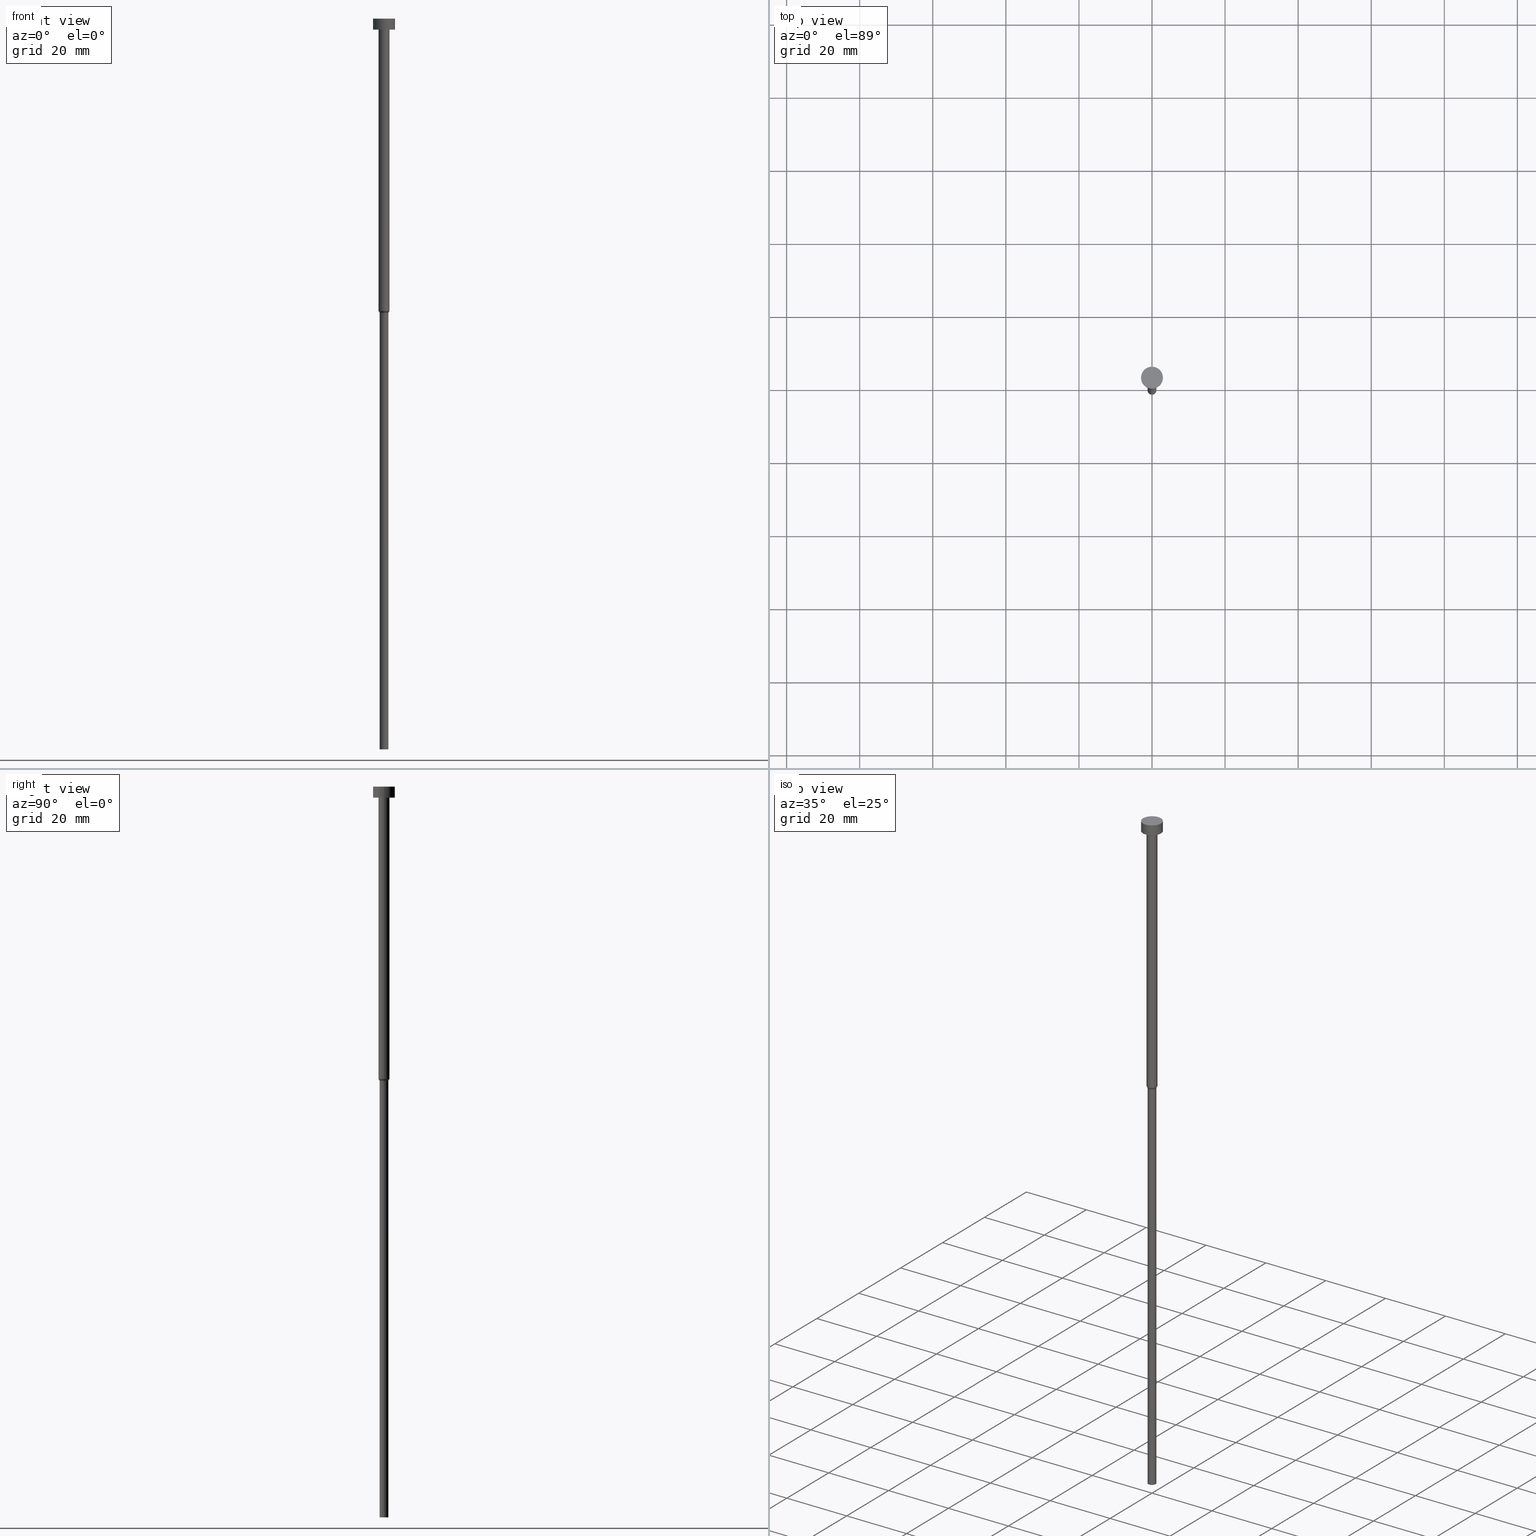
[diagram: canonical four-view strip — front | top / right | iso, engineering-drawing reading convention]
A machine part, canonical four-view strip (front | top / right | iso — engineering-drawing reading convention). The complete STEP part file that produces these views, byte-faithful:
ISO-10303-21;
HEADER;
FILE_DESCRIPTION (( 'STEP AP203' ),
    '1' );
FILE_NAME ('e795.STEP',
    '2023-02-13T09:02:41',
    ( '' ),
    ( '' ),
    'SwSTEP 2.0',
    'SolidWorks 2019',
    '' );
FILE_SCHEMA (( 'CONFIG_CONTROL_DESIGN' ));
ENDSEC;

DATA;
#1 = PERSON_AND_ORGANIZATION ( #167, #146 ) ;
#2 = CC_DESIGN_APPROVAL ( #73, ( #165 ) ) ;
#3 = ORIENTED_EDGE ( 'NONE', *, *, #306, .T. ) ;
#4 = DIRECTION ( 'NONE',  ( -0.000000000000000000, -0.000000000000000000, 1.000000000000000000 ) ) ;
#5 = DIRECTION ( 'NONE',  ( -0.000000000000000000, -0.000000000000000000, 1.000000000000000000 ) ) ;
#6 = FACE_OUTER_BOUND ( 'NONE', #250, .T. ) ;
#7 = EDGE_CURVE ( 'NONE', #352, #171, #114, .T. ) ;
#8 = CARTESIAN_POINT ( 'NONE',  ( -3.000000000000000000, 3.673940397442059868E-16, -3.673940397442059868E-16 ) ) ;
#9 = DIRECTION ( 'NONE',  ( 1.000000000000000000, 0.000000000000000000, 0.000000000000000000 ) ) ;
#10 = EDGE_CURVE ( 'NONE', #62, #171, #228, .T. ) ;
#11 = PERSON_AND_ORGANIZATION_ROLE ( 'creator' ) ;
#12 = EDGE_CURVE ( 'NONE', #352, #289, #100, .T. ) ;
#13 = ORIENTED_EDGE ( 'NONE', *, *, #22, .F. ) ;
#14 = DIRECTION ( 'NONE',  ( 1.000000000000000000, 0.000000000000000000, 0.000000000000000000 ) ) ;
#15 = EDGE_LOOP ( 'NONE', ( #329, #120 ) ) ;
#16 = DIRECTION ( 'NONE',  ( -0.000000000000000000, -0.000000000000000000, 1.000000000000000000 ) ) ;
#17 = AXIS2_PLACEMENT_3D ( 'NONE', #308, #177, #76 ) ;
#18 = DESIGN_CONTEXT ( 'detailed design', #105, 'design' ) ;
#19 = CARTESIAN_POINT ( 'NONE',  ( 0.000000000000000000, 0.000000000000000000, -200.0000000000000000 ) ) ;
#20 = MANIFOLD_SOLID_BREP ( 'Rotovat1', #123 ) ;
#21 = CIRCLE ( 'NONE', #26, 3.000000000000000000 ) ;
#22 = EDGE_CURVE ( 'NONE', #39, #60, #314, .T. ) ;
#23 = CARTESIAN_POINT ( 'NONE',  ( 0.000000000000000000, 0.000000000000000000, -1.836970198721029934E-16 ) ) ;
#24 = DIRECTION ( 'NONE',  ( 1.000000000000000000, 0.000000000000000000, 0.000000000000000000 ) ) ;
#25 = DIRECTION ( 'NONE',  ( 1.000000000000000000, 0.000000000000000000, 0.000000000000000000 ) ) ;
#26 = AXIS2_PLACEMENT_3D ( 'NONE', #183, #42, #307 ) ;
#27 = CARTESIAN_POINT ( 'NONE',  ( 0.000000000000000000, 0.000000000000000000, 0.000000000000000000 ) ) ;
#28 = ORIENTED_EDGE ( 'NONE', *, *, #271, .T. ) ;
#29 = EDGE_CURVE ( 'NONE', #265, #62, #202, .T. ) ;
#30 = AXIS2_PLACEMENT_3D ( 'NONE', #285, #121, #93 ) ;
#31 = EDGE_LOOP ( 'NONE', ( #305, #224, #249, #269 ) ) ;
#32 = PRODUCT_RELATED_PRODUCT_CATEGORY ( 'detail', '', ( #84 ) ) ;
#33 = VERTEX_POINT ( 'NONE', #8 ) ;
#34 = CIRCLE ( 'NONE', #88, 1.500000000000000000 ) ;
#35 = ADVANCED_FACE ( 'NONE', ( #127 ), #144, .T. ) ;
#36 = ORIENTED_EDGE ( 'NONE', *, *, #241, .F. ) ;
#37 = DIRECTION ( 'NONE',  ( 1.000000000000000000, 0.000000000000000000, 0.000000000000000000 ) ) ;
#38 = ORIENTED_EDGE ( 'NONE', *, *, #258, .F. ) ;
#39 = VERTEX_POINT ( 'NONE', #156 ) ;
#40 = CYLINDRICAL_SURFACE ( 'NONE', #108, 1.199999999999999956 ) ;
#41 = CARTESIAN_POINT ( 'NONE',  ( -1.500000000000000000, 1.836970198721029934E-16, 0.000000000000000000 ) ) ;
#42 = DIRECTION ( 'NONE',  ( -0.000000000000000000, -0.000000000000000000, 1.000000000000000000 ) ) ;
#43 = APPROVAL ( #166, 'NEUR�EN�' ) ;
#44 = CALENDAR_DATE ( 2023, 13, 2 ) ;
#45 = DIRECTION ( 'NONE',  ( 1.000000000000000000, 0.000000000000000000, 0.000000000000000000 ) ) ;
#46 = AXIS2_PLACEMENT_3D ( 'NONE', #209, #16, #162 ) ;
#47 = APPROVAL_ROLE ( '' ) ;
#48 = CARTESIAN_POINT ( 'NONE',  ( 0.000000000000000000, 0.000000000000000000, -3.000000000000000888 ) ) ;
#49 = CC_DESIGN_PERSON_AND_ORGANIZATION_ASSIGNMENT ( #1, #327, ( #316 ) ) ;
#50 = ORIENTED_EDGE ( 'NONE', *, *, #271, .F. ) ;
#51 = DIRECTION ( 'NONE',  ( 1.000000000000000000, 0.000000000000000000, 0.000000000000000000 ) ) ;
#52 = FACE_OUTER_BOUND ( 'NONE', #168, .T. ) ;
#53 = DIRECTION ( 'NONE',  ( 1.000000000000000000, 0.000000000000000000, 0.000000000000000000 ) ) ;
#54 = FACE_OUTER_BOUND ( 'NONE', #15, .T. ) ;
#55 = DATE_AND_TIME ( #216, #227 ) ;
#56 = PERSON_AND_ORGANIZATION ( #167, #146 ) ;
#57 = CARTESIAN_POINT ( 'NONE',  ( 3.000000000000000000, 0.000000000000000000, -3.673940397442059868E-16 ) ) ;
#58 = AXIS2_PLACEMENT_3D ( 'NONE', #27, #318, #51 ) ;
#59 = CC_DESIGN_PERSON_AND_ORGANIZATION_ASSIGNMENT ( #343, #11, ( #316 ) ) ;
#60 = VERTEX_POINT ( 'NONE', #246 ) ;
#61 = EDGE_LOOP ( 'NONE', ( #199, #301 ) ) ;
#62 = VERTEX_POINT ( 'NONE', #188 ) ;
#63 = VECTOR ( 'NONE', #294, 1000.000000000000114 ) ;
#64 = ADVANCED_FACE ( 'NONE', ( #52 ), #248, .T. ) ;
#65 = ADVANCED_FACE ( 'NONE', ( #298 ), #275, .T. ) ;
#66 = AXIS2_PLACEMENT_3D ( 'NONE', #333, #130, #77 ) ;
#67 = LOCAL_TIME ( 10, 2, 41.00000000000000000, #303 ) ;
#68 = EDGE_LOOP ( 'NONE', ( #38, #94, #151, #147 ) ) ;
#69 = DIRECTION ( 'NONE',  ( -0.000000000000000000, -0.000000000000000000, 1.000000000000000000 ) ) ;
#70 = EDGE_CURVE ( 'NONE', #119, #289, #34, .T. ) ;
#71 = DIRECTION ( 'NONE',  ( -0.000000000000000000, -0.000000000000000000, 1.000000000000000000 ) ) ;
#72 = ORIENTED_EDGE ( 'NONE', *, *, #7, .F. ) ;
#73 = APPROVAL ( #132, 'NEUR�EN�' ) ;
#74 = CARTESIAN_POINT ( 'NONE',  ( 0.000000000000000000, 0.000000000000000000, -3.673940397442059868E-16 ) ) ;
#75 = ADVANCED_BREP_SHAPE_REPRESENTATION ( 'e795', ( #20, #267 ), #135 ) ;
#76 = DIRECTION ( 'NONE',  ( -1.000000000000000000, 0.000000000000000000, -0.000000000000000000 ) ) ;
#77 = DIRECTION ( 'NONE',  ( -1.000000000000000000, 0.000000000000000000, -0.000000000000000000 ) ) ;
#78 = COORDINATED_UNIVERSAL_TIME_OFFSET ( 1, 0, .AHEAD. ) ;
#79 = ADVANCED_FACE ( 'NONE', ( #192 ), #184, .T. ) ;
#80 = ORIENTED_EDGE ( 'NONE', *, *, #297, .T. ) ;
#81 = CYLINDRICAL_SURFACE ( 'NONE', #347, 1.500000000000000000 ) ;
#82 = DIRECTION ( 'NONE',  ( 1.000000000000000000, 0.000000000000000000, 0.000000000000000000 ) ) ;
#83 = VECTOR ( 'NONE', #5, 1000.000000000000000 ) ;
#84 = PRODUCT ( 'e795', 'e795', '', ( #299 ) ) ;
#85 = LOCAL_TIME ( 10, 2, 41.00000000000000000, #87 ) ;
#86 = CARTESIAN_POINT ( 'NONE',  ( 0.000000000000000000, 0.000000000000000000, 0.000000000000000000 ) ) ;
#87 = COORDINATED_UNIVERSAL_TIME_OFFSET ( 1, 0, .AHEAD. ) ;
#88 = AXIS2_PLACEMENT_3D ( 'NONE', #48, #320, #82 ) ;
#89 = DIRECTION ( 'NONE',  ( 1.000000000000000000, 0.000000000000000000, 0.000000000000000000 ) ) ;
#90 = SHAPE_DEFINITION_REPRESENTATION ( #196, #75 ) ;
#91 = VECTOR ( 'NONE', #152, 1000.000000000000114 ) ;
#92 = ADVANCED_FACE ( 'NONE', ( #234 ), #331, .T. ) ;
#93 = DIRECTION ( 'NONE',  ( 1.000000000000000000, 0.000000000000000000, 0.000000000000000000 ) ) ;
#94 = ORIENTED_EDGE ( 'NONE', *, *, #319, .T. ) ;
#95 = DIRECTION ( 'NONE',  ( -0.000000000000000000, -0.000000000000000000, 1.000000000000000000 ) ) ;
#96 = CC_DESIGN_PERSON_AND_ORGANIZATION_ASSIGNMENT ( #139, #220, ( #84 ) ) ;
#97 = CARTESIAN_POINT ( 'NONE',  ( 0.000000000000000000, 0.000000000000000000, -80.00000000000000000 ) ) ;
#98 = FACE_BOUND ( 'NONE', #61, .T. ) ;
#99 = AXIS2_PLACEMENT_3D ( 'NONE', #244, #213, #24 ) ;
#100 = LINE ( 'NONE', #41, #133 ) ;
#101 = LINE ( 'NONE', #263, #300 ) ;
#102 = EDGE_LOOP ( 'NONE', ( #201, #176 ) ) ;
#103 = UNCERTAINTY_MEASURE_WITH_UNIT (LENGTH_MEASURE( 1.000000000000000082E-05 ), #342, 'distance_accuracy_value', 'NONE');
#104 = APPROVAL_DATE_TIME ( #253, #112 ) ;
#105 = APPLICATION_CONTEXT ( 'configuration controlled 3d designs of mechanical parts and assemblies' ) ;
#106 = DIRECTION ( 'NONE',  ( 1.000000000000000000, 0.000000000000000000, 0.000000000000000000 ) ) ;
#107 = COORDINATED_UNIVERSAL_TIME_OFFSET ( 1, 0, .AHEAD. ) ;
#108 = AXIS2_PLACEMENT_3D ( 'NONE', #340, #134, #232 ) ;
#109 = PERSON_AND_ORGANIZATION_ROLE ( 'creator' ) ;
#110 = FACE_OUTER_BOUND ( 'NONE', #326, .T. ) ;
#111 = CALENDAR_DATE ( 2023, 13, 2 ) ;
#112 = APPROVAL ( #221, 'NEUR�EN�' ) ;
#113 = FACE_OUTER_BOUND ( 'NONE', #302, .T. ) ;
#114 = CIRCLE ( 'NONE', #226, 1.500000000000000000 ) ;
#115 = AXIS2_PLACEMENT_3D ( 'NONE', #74, #69, #317 ) ;
#116 = VERTEX_POINT ( 'NONE', #57 ) ;
#117 = VERTEX_POINT ( 'NONE', #254 ) ;
#118 = APPROVAL_PERSON_ORGANIZATION ( #245, #112, #47 ) ;
#119 = VERTEX_POINT ( 'NONE', #215 ) ;
#120 = ORIENTED_EDGE ( 'NONE', *, *, #235, .T. ) ;
#121 = DIRECTION ( 'NONE',  ( -0.000000000000000000, -0.000000000000000000, 1.000000000000000000 ) ) ;
#122 = ADVANCED_FACE ( 'NONE', ( #54 ), #350, .T. ) ;
#123 = CLOSED_SHELL ( 'NONE', ( #64, #335, #35, #310, #79, #161, #92, #129, #277, #65, #122 ) ) ;
#124 = DIRECTION ( 'NONE',  ( 1.000000000000000000, 0.000000000000000000, 0.000000000000000000 ) ) ;
#125 = PLANE ( 'NONE',  #66 ) ;
#126 = CC_DESIGN_PERSON_AND_ORGANIZATION_ASSIGNMENT ( #243, #155, ( #165 ) ) ;
#127 = FACE_OUTER_BOUND ( 'NONE', #257, .T. ) ;
#128 = ORIENTED_EDGE ( 'NONE', *, *, #282, .F. ) ;
#129 = ADVANCED_FACE ( 'NONE', ( #110 ), #218, .T. ) ;
#130 = DIRECTION ( 'NONE',  ( 0.000000000000000000, 0.000000000000000000, -1.000000000000000000 ) ) ;
#131 = ORIENTED_EDGE ( 'NONE', *, *, #355, .F. ) ;
#132 = APPROVAL_STATUS ( 'not_yet_approved' ) ;
#133 = VECTOR ( 'NONE', #4, 1000.000000000000000 ) ;
#134 = DIRECTION ( 'NONE',  ( -0.000000000000000000, -0.000000000000000000, 1.000000000000000000 ) ) ;
#135 =( GEOMETRIC_REPRESENTATION_CONTEXT ( 3 ) GLOBAL_UNCERTAINTY_ASSIGNED_CONTEXT ( ( #103 ) ) GLOBAL_UNIT_ASSIGNED_CONTEXT ( ( #342, #251, #323 ) ) REPRESENTATION_CONTEXT ( 'NONE', 'WORKASPACE' ) );
#136 = CARTESIAN_POINT ( 'NONE',  ( 0.000000000000000000, 0.000000000000000000, 0.000000000000000000 ) ) ;
#137 = APPLICATION_PROTOCOL_DEFINITION ( 'international standard', 'config_control_design', 1994, #105 ) ;
#138 = DIRECTION ( 'NONE',  ( 0.000000000000000000, -0.000000000000000000, 1.000000000000000000 ) ) ;
#139 = PERSON_AND_ORGANIZATION ( #167, #146 ) ;
#140 = DIRECTION ( 'NONE',  ( 1.000000000000000000, 0.000000000000000000, 0.000000000000000000 ) ) ;
#141 = EDGE_CURVE ( 'NONE', #265, #288, #200, .T. ) ;
#142 = DATE_AND_TIME ( #111, #67 ) ;
#143 = EDGE_LOOP ( 'NONE', ( #287, #334, #28, #262 ) ) ;
#144 = CONICAL_SURFACE ( 'NONE', #187, 1.500000000000000000, 0.5235987755982992597 ) ;
#145 = AXIS2_PLACEMENT_3D ( 'NONE', #19, #153, #9 ) ;
#146 = ORGANIZATION ( 'NEUR�EN�', 'NEUR�EN�', '' ) ;
#147 = ORIENTED_EDGE ( 'NONE', *, *, #264, .F. ) ;
#148 = DIRECTION ( 'NONE',  ( -0.000000000000000000, -0.000000000000000000, 1.000000000000000000 ) ) ;
#149 = EDGE_LOOP ( 'NONE', ( #131, #178, #354, #72 ) ) ;
#150 = CC_DESIGN_PERSON_AND_ORGANIZATION_ASSIGNMENT ( #56, #109, ( #225 ) ) ;
#151 = ORIENTED_EDGE ( 'NONE', *, *, #29, .T. ) ;
#152 = DIRECTION ( 'NONE',  ( 0.5000000000000003331, 0.000000000000000000, 0.8660254037844383745 ) ) ;
#153 = DIRECTION ( 'NONE',  ( -0.000000000000000000, -0.000000000000000000, 1.000000000000000000 ) ) ;
#154 = CARTESIAN_POINT ( 'NONE',  ( 0.000000000000000000, 0.000000000000000000, -80.51961524227066036 ) ) ;
#155 = PERSON_AND_ORGANIZATION_ROLE ( 'classification_officer' ) ;
#156 = CARTESIAN_POINT ( 'NONE',  ( 3.000000000000000000, 0.000000000000000000, -3.000000000000000888 ) ) ;
#157 = CARTESIAN_POINT ( 'NONE',  ( -3.000000000000000000, 3.673940397442059868E-16, 0.000000000000000000 ) ) ;
#158 = VECTOR ( 'NONE', #266, 1000.000000000000000 ) ;
#159 = COORDINATED_UNIVERSAL_TIME_OFFSET ( 1, 0, .AHEAD. ) ;
#160 = CC_DESIGN_SECURITY_CLASSIFICATION ( #165, ( #316 ) ) ;
#161 = ADVANCED_FACE ( 'NONE', ( #240 ), #40, .T. ) ;
#162 = DIRECTION ( 'NONE',  ( 1.000000000000000000, 0.000000000000000000, 0.000000000000000000 ) ) ;
#163 = AXIS2_PLACEMENT_3D ( 'NONE', #230, #332, #206 ) ;
#164 = DIRECTION ( 'NONE',  ( 0.000000000000000000, 0.000000000000000000, 1.000000000000000000 ) ) ;
#165 = SECURITY_CLASSIFICATION ( '', '', #345 ) ;
#166 = APPROVAL_STATUS ( 'not_yet_approved' ) ;
#167 = PERSON ( 'NEUR�EN�', 'NEUR�EN�', 'NEUR�EN�', ('NEUR�EN�'), ('NEUR�EN�'), ('NEUR�EN�') ) ;
#168 = EDGE_LOOP ( 'NONE', ( #338, #80, #256, #50 ) ) ;
#169 = ORIENTED_EDGE ( 'NONE', *, *, #268, .F. ) ;
#170 = AXIS2_PLACEMENT_3D ( 'NONE', #321, #247, #53 ) ;
#171 = VERTEX_POINT ( 'NONE', #207 ) ;
#172 = APPLICATION_CONTEXT ( 'configuration controlled 3d designs of mechanical parts and assemblies' ) ;
#173 = LINE ( 'NONE', #157, #83 ) ;
#174 = AXIS2_PLACEMENT_3D ( 'NONE', #86, #324, #89 ) ;
#175 = APPROVAL_PERSON_ORGANIZATION ( #195, #43, #349 ) ;
#176 = ORIENTED_EDGE ( 'NONE', *, *, #319, .F. ) ;
#177 = DIRECTION ( 'NONE',  ( 0.000000000000000000, 0.000000000000000000, -1.000000000000000000 ) ) ;
#178 = ORIENTED_EDGE ( 'NONE', *, *, #264, .T. ) ;
#179 = ORIENTED_EDGE ( 'NONE', *, *, #355, .T. ) ;
#180 = CARTESIAN_POINT ( 'NONE',  ( 3.000000000000000000, 0.000000000000000000, 0.000000000000000000 ) ) ;
#181 = CIRCLE ( 'NONE', #115, 3.000000000000000000 ) ;
#182 = DATE_TIME_ROLE ( 'classification_date' ) ;
#183 = CARTESIAN_POINT ( 'NONE',  ( 0.000000000000000000, 0.000000000000000000, -3.000000000000000888 ) ) ;
#184 = PLANE ( 'NONE',  #17 ) ;
#185 = DIRECTION ( 'NONE',  ( -0.000000000000000000, -0.000000000000000000, 1.000000000000000000 ) ) ;
#186 = ORIENTED_EDGE ( 'NONE', *, *, #12, .F. ) ;
#187 = AXIS2_PLACEMENT_3D ( 'NONE', #97, #204, #194 ) ;
#188 = CARTESIAN_POINT ( 'NONE',  ( 1.199999999999999956, 0.000000000000000000, -80.51961524227066036 ) ) ;
#189 = LINE ( 'NONE', #279, #63 ) ;
#190 = CARTESIAN_POINT ( 'NONE',  ( 0.000000000000000000, 0.000000000000000000, -80.00000000000000000 ) ) ;
#191 = AXIS2_PLACEMENT_3D ( 'NONE', #292, #315, #37 ) ;
#192 = FACE_OUTER_BOUND ( 'NONE', #102, .T. ) ;
#193 = DATE_AND_TIME ( #214, #296 ) ;
#194 = DIRECTION ( 'NONE',  ( 1.000000000000000000, 0.000000000000000000, 0.000000000000000000 ) ) ;
#195 = PERSON_AND_ORGANIZATION ( #167, #146 ) ;
#196 = PRODUCT_DEFINITION_SHAPE ( 'NONE', 'NONE',  #225 ) ;
#197 = AXIS2_PLACEMENT_3D ( 'NONE', #190, #252, #106 ) ;
#198 = APPROVAL_PERSON_ORGANIZATION ( #291, #73, #222 ) ;
#199 = ORIENTED_EDGE ( 'NONE', *, *, #70, .T. ) ;
#200 = CIRCLE ( 'NONE', #145, 1.199999999999999956 ) ;
#201 = ORIENTED_EDGE ( 'NONE', *, *, #141, .F. ) ;
#202 = LINE ( 'NONE', #311, #158 ) ;
#203 = CARTESIAN_POINT ( 'NONE',  ( -1.199999999999999956, 1.469576158976823553E-16, -200.0000000000000000 ) ) ;
#204 = DIRECTION ( 'NONE',  ( -0.000000000000000000, -0.000000000000000000, 1.000000000000000000 ) ) ;
#205 = DATE_AND_TIME ( #44, #278 ) ;
#206 = DIRECTION ( 'NONE',  ( 1.000000000000000000, 0.000000000000000000, 0.000000000000000000 ) ) ;
#207 = CARTESIAN_POINT ( 'NONE',  ( 1.500000000000000000, 0.000000000000000000, -80.00000000000000000 ) ) ;
#208 = VECTOR ( 'NONE', #71, 1000.000000000000000 ) ;
#209 = CARTESIAN_POINT ( 'NONE',  ( 0.000000000000000000, 0.000000000000000000, 0.000000000000000000 ) ) ;
#210 = DIRECTION ( 'NONE',  ( -0.000000000000000000, -0.000000000000000000, 1.000000000000000000 ) ) ;
#211 = CYLINDRICAL_SURFACE ( 'NONE', #58, 1.199999999999999956 ) ;
#212 = EDGE_CURVE ( 'NONE', #171, #119, #101, .T. ) ;
#213 = DIRECTION ( 'NONE',  ( -0.000000000000000000, -0.000000000000000000, 1.000000000000000000 ) ) ;
#214 = CALENDAR_DATE ( 2023, 13, 2 ) ;
#215 = CARTESIAN_POINT ( 'NONE',  ( 1.500000000000000000, 0.000000000000000000, -3.000000000000000888 ) ) ;
#216 = CALENDAR_DATE ( 2023, 13, 2 ) ;
#217 = FACE_OUTER_BOUND ( 'NONE', #31, .T. ) ;
#218 = CYLINDRICAL_SURFACE ( 'NONE', #174, 1.500000000000000000 ) ;
#219 = APPROVAL_DATE_TIME ( #142, #73 ) ;
#220 = PERSON_AND_ORGANIZATION_ROLE ( 'design_owner' ) ;
#221 = APPROVAL_STATUS ( 'not_yet_approved' ) ;
#222 = APPROVAL_ROLE ( '' ) ;
#223 = CIRCLE ( 'NONE', #170, 1.199999999999999956 ) ;
#224 = ORIENTED_EDGE ( 'NONE', *, *, #258, .T. ) ;
#225 = PRODUCT_DEFINITION ( 'NEZN�M�', '', #316, #18 ) ;
#226 = AXIS2_PLACEMENT_3D ( 'NONE', #238, #337, #124 ) ;
#227 = LOCAL_TIME ( 10, 2, 41.00000000000000000, #107 ) ;
#228 = LINE ( 'NONE', #260, #91 ) ;
#229 = CARTESIAN_POINT ( 'NONE',  ( 1.199999999999999956, 0.000000000000000000, -200.0000000000000000 ) ) ;
#230 = CARTESIAN_POINT ( 'NONE',  ( 0.000000000000000000, 0.000000000000000000, -3.000000000000000888 ) ) ;
#231 = VECTOR ( 'NONE', #148, 1000.000000000000000 ) ;
#232 = DIRECTION ( 'NONE',  ( 1.000000000000000000, 0.000000000000000000, 0.000000000000000000 ) ) ;
#233 = AXIS2_PLACEMENT_3D ( 'NONE', #154, #270, #330 ) ;
#234 = FACE_OUTER_BOUND ( 'NONE', #149, .T. ) ;
#235 = EDGE_CURVE ( 'NONE', #33, #116, #295, .T. ) ;
#236 = EDGE_CURVE ( 'NONE', #116, #33, #181, .T. ) ;
#237 = LINE ( 'NONE', #336, #208 ) ;
#238 = CARTESIAN_POINT ( 'NONE',  ( 0.000000000000000000, 0.000000000000000000, -80.00000000000000000 ) ) ;
#239 = ORIENTED_EDGE ( 'NONE', *, *, #212, .T. ) ;
#240 = FACE_OUTER_BOUND ( 'NONE', #68, .T. ) ;
#241 = EDGE_CURVE ( 'NONE', #60, #39, #21, .T. ) ;
#242 = CIRCLE ( 'NONE', #30, 1.500000000000000000 ) ;
#243 = PERSON_AND_ORGANIZATION ( #167, #146 ) ;
#244 = CARTESIAN_POINT ( 'NONE',  ( 0.000000000000000000, 0.000000000000000000, 0.000000000000000000 ) ) ;
#245 = PERSON_AND_ORGANIZATION ( #167, #146 ) ;
#246 = CARTESIAN_POINT ( 'NONE',  ( -3.000000000000000000, 3.673940397442059868E-16, -3.000000000000000888 ) ) ;
#247 = DIRECTION ( 'NONE',  ( -0.000000000000000000, -0.000000000000000000, 1.000000000000000000 ) ) ;
#248 = CYLINDRICAL_SURFACE ( 'NONE', #46, 3.000000000000000000 ) ;
#249 = ORIENTED_EDGE ( 'NONE', *, *, #306, .F. ) ;
#250 = EDGE_LOOP ( 'NONE', ( #13, #36 ) ) ;
#251 =( NAMED_UNIT ( * ) PLANE_ANGLE_UNIT ( ) SI_UNIT ( $, .RADIAN. ) );
#252 = DIRECTION ( 'NONE',  ( -0.000000000000000000, -0.000000000000000000, 1.000000000000000000 ) ) ;
#253 = DATE_AND_TIME ( #344, #85 ) ;
#254 = CARTESIAN_POINT ( 'NONE',  ( -1.199999999999999956, 1.469576158976823553E-16, -80.51961524227066036 ) ) ;
#255 = ORIENTED_EDGE ( 'NONE', *, *, #70, .F. ) ;
#256 = ORIENTED_EDGE ( 'NONE', *, *, #236, .F. ) ;
#257 = EDGE_LOOP ( 'NONE', ( #3, #179, #169, #309 ) ) ;
#258 = EDGE_CURVE ( 'NONE', #288, #117, #237, .T. ) ;
#259 = ORIENTED_EDGE ( 'NONE', *, *, #7, .T. ) ;
#260 = CARTESIAN_POINT ( 'NONE',  ( 1.500000000000000000, 0.000000000000000000, -80.00000000000000000 ) ) ;
#261 = CARTESIAN_POINT ( 'NONE',  ( 0.000000000000000000, 0.000000000000000000, -3.000000000000000888 ) ) ;
#262 = ORIENTED_EDGE ( 'NONE', *, *, #235, .F. ) ;
#263 = CARTESIAN_POINT ( 'NONE',  ( 1.500000000000000000, 0.000000000000000000, 0.000000000000000000 ) ) ;
#264 = EDGE_CURVE ( 'NONE', #117, #62, #339, .T. ) ;
#265 = VERTEX_POINT ( 'NONE', #229 ) ;
#266 = DIRECTION ( 'NONE',  ( -0.000000000000000000, -0.000000000000000000, 1.000000000000000000 ) ) ;
#267 = AXIS2_PLACEMENT_3D ( 'NONE', #136, #164, #140 ) ;
#268 = EDGE_CURVE ( 'NONE', #171, #352, #242, .T. ) ;
#269 = ORIENTED_EDGE ( 'NONE', *, *, #29, .F. ) ;
#270 = DIRECTION ( 'NONE',  ( -0.000000000000000000, -0.000000000000000000, 1.000000000000000000 ) ) ;
#271 = EDGE_CURVE ( 'NONE', #39, #116, #286, .T. ) ;
#272 = AXIS2_PLACEMENT_3D ( 'NONE', #261, #95, #45 ) ;
#273 = APPROVAL_DATE_TIME ( #205, #43 ) ;
#274 = CARTESIAN_POINT ( 'NONE',  ( -1.500000000000000000, 1.836970198721029934E-16, -80.00000000000000000 ) ) ;
#275 = CYLINDRICAL_SURFACE ( 'NONE', #99, 3.000000000000000000 ) ;
#276 = APPLICATION_PROTOCOL_DEFINITION ( 'international standard', 'config_control_design', 1994, #172 ) ;
#277 = ADVANCED_FACE ( 'NONE', ( #98, #6 ), #125, .T. ) ;
#278 = LOCAL_TIME ( 10, 2, 41.00000000000000000, #78 ) ;
#279 = CARTESIAN_POINT ( 'NONE',  ( -1.500000000000000000, 1.836970198721029934E-16, -80.00000000000000000 ) ) ;
#280 = CIRCLE ( 'NONE', #233, 1.199999999999999956 ) ;
#281 = CC_DESIGN_APPROVAL ( #112, ( #225 ) ) ;
#282 = EDGE_CURVE ( 'NONE', #289, #119, #284, .T. ) ;
#283 = ORIENTED_EDGE ( 'NONE', *, *, #12, .T. ) ;
#284 = CIRCLE ( 'NONE', #272, 1.500000000000000000 ) ;
#285 = CARTESIAN_POINT ( 'NONE',  ( 0.000000000000000000, 0.000000000000000000, -80.00000000000000000 ) ) ;
#286 = LINE ( 'NONE', #180, #231 ) ;
#287 = ORIENTED_EDGE ( 'NONE', *, *, #297, .F. ) ;
#288 = VERTEX_POINT ( 'NONE', #203 ) ;
#289 = VERTEX_POINT ( 'NONE', #313 ) ;
#290 = DIRECTION ( 'NONE',  ( -0.000000000000000000, -0.000000000000000000, 1.000000000000000000 ) ) ;
#291 = PERSON_AND_ORGANIZATION ( #167, #146 ) ;
#292 = CARTESIAN_POINT ( 'NONE',  ( 0.000000000000000000, 0.000000000000000000, -80.51961524227066036 ) ) ;
#293 = ORIENTED_EDGE ( 'NONE', *, *, #268, .T. ) ;
#294 = DIRECTION ( 'NONE',  ( -0.5000000000000003331, 6.123233995736769734E-17, 0.8660254037844383745 ) ) ;
#295 = CIRCLE ( 'NONE', #304, 3.000000000000000000 ) ;
#296 = LOCAL_TIME ( 10, 2, 41.00000000000000000, #159 ) ;
#297 = EDGE_CURVE ( 'NONE', #60, #33, #173, .T. ) ;
#298 = FACE_OUTER_BOUND ( 'NONE', #143, .T. ) ;
#299 = MECHANICAL_CONTEXT ( 'NONE', #172, 'mechanical' ) ;
#300 = VECTOR ( 'NONE', #290, 1000.000000000000000 ) ;
#301 = ORIENTED_EDGE ( 'NONE', *, *, #282, .T. ) ;
#302 = EDGE_LOOP ( 'NONE', ( #293, #283, #255, #328 ) ) ;
#303 = COORDINATED_UNIVERSAL_TIME_OFFSET ( 1, 0, .AHEAD. ) ;
#304 = AXIS2_PLACEMENT_3D ( 'NONE', #312, #210, #14 ) ;
#305 = ORIENTED_EDGE ( 'NONE', *, *, #141, .T. ) ;
#306 = EDGE_CURVE ( 'NONE', #62, #117, #280, .T. ) ;
#307 = DIRECTION ( 'NONE',  ( 1.000000000000000000, 0.000000000000000000, 0.000000000000000000 ) ) ;
#308 = CARTESIAN_POINT ( 'NONE',  ( 0.000000000000000000, 0.000000000000000000, -200.0000000000000000 ) ) ;
#309 = ORIENTED_EDGE ( 'NONE', *, *, #10, .F. ) ;
#310 = ADVANCED_FACE ( 'NONE', ( #217 ), #211, .T. ) ;
#311 = CARTESIAN_POINT ( 'NONE',  ( 1.199999999999999956, 0.000000000000000000, 0.000000000000000000 ) ) ;
#312 = CARTESIAN_POINT ( 'NONE',  ( 0.000000000000000000, 0.000000000000000000, -3.673940397442059868E-16 ) ) ;
#313 = CARTESIAN_POINT ( 'NONE',  ( -1.500000000000000000, 1.836970198721029934E-16, -3.000000000000000888 ) ) ;
#314 = CIRCLE ( 'NONE', #163, 3.000000000000000000 ) ;
#315 = DIRECTION ( 'NONE',  ( -0.000000000000000000, -0.000000000000000000, 1.000000000000000000 ) ) ;
#316 = PRODUCT_DEFINITION_FORMATION_WITH_SPECIFIED_SOURCE ( 'LIBOVOLN�', '', #84, .NOT_KNOWN. ) ;
#317 = DIRECTION ( 'NONE',  ( 1.000000000000000000, 0.000000000000000000, 0.000000000000000000 ) ) ;
#318 = DIRECTION ( 'NONE',  ( -0.000000000000000000, -0.000000000000000000, 1.000000000000000000 ) ) ;
#319 = EDGE_CURVE ( 'NONE', #288, #265, #223, .T. ) ;
#320 = DIRECTION ( 'NONE',  ( -0.000000000000000000, -0.000000000000000000, 1.000000000000000000 ) ) ;
#321 = CARTESIAN_POINT ( 'NONE',  ( 0.000000000000000000, 0.000000000000000000, -200.0000000000000000 ) ) ;
#322 = DATE_TIME_ROLE ( 'creation_date' ) ;
#323 =( NAMED_UNIT ( * ) SI_UNIT ( $, .STERADIAN. ) SOLID_ANGLE_UNIT ( ) );
#324 = DIRECTION ( 'NONE',  ( -0.000000000000000000, -0.000000000000000000, 1.000000000000000000 ) ) ;
#325 = CC_DESIGN_DATE_AND_TIME_ASSIGNMENT ( #55, #182, ( #165 ) ) ;
#326 = EDGE_LOOP ( 'NONE', ( #186, #259, #239, #128 ) ) ;
#327 = PERSON_AND_ORGANIZATION_ROLE ( 'design_supplier' ) ;
#328 = ORIENTED_EDGE ( 'NONE', *, *, #212, .F. ) ;
#329 = ORIENTED_EDGE ( 'NONE', *, *, #236, .T. ) ;
#330 = DIRECTION ( 'NONE',  ( 1.000000000000000000, 0.000000000000000000, 0.000000000000000000 ) ) ;
#331 = CONICAL_SURFACE ( 'NONE', #197, 1.500000000000000000, 0.5235987755982992597 ) ;
#332 = DIRECTION ( 'NONE',  ( -0.000000000000000000, -0.000000000000000000, 1.000000000000000000 ) ) ;
#333 = CARTESIAN_POINT ( 'NONE',  ( 0.000000000000000000, -3.000000000000000000, -3.000000000000000888 ) ) ;
#334 = ORIENTED_EDGE ( 'NONE', *, *, #241, .T. ) ;
#335 = ADVANCED_FACE ( 'NONE', ( #113 ), #81, .T. ) ;
#336 = CARTESIAN_POINT ( 'NONE',  ( -1.199999999999999956, 1.469576158976823553E-16, 0.000000000000000000 ) ) ;
#337 = DIRECTION ( 'NONE',  ( -0.000000000000000000, -0.000000000000000000, 1.000000000000000000 ) ) ;
#338 = ORIENTED_EDGE ( 'NONE', *, *, #22, .T. ) ;
#339 = CIRCLE ( 'NONE', #191, 1.199999999999999956 ) ;
#340 = CARTESIAN_POINT ( 'NONE',  ( 0.000000000000000000, 0.000000000000000000, 0.000000000000000000 ) ) ;
#341 = CC_DESIGN_APPROVAL ( #43, ( #316 ) ) ;
#342 =( LENGTH_UNIT ( ) NAMED_UNIT ( * ) SI_UNIT ( .MILLI., .METRE. ) );
#343 = PERSON_AND_ORGANIZATION ( #167, #146 ) ;
#344 = CALENDAR_DATE ( 2023, 13, 2 ) ;
#345 = SECURITY_CLASSIFICATION_LEVEL ( 'unclassified' ) ;
#346 = DIRECTION ( 'NONE',  ( 1.000000000000000000, 0.000000000000000000, 0.000000000000000000 ) ) ;
#347 = AXIS2_PLACEMENT_3D ( 'NONE', #348, #185, #25 ) ;
#348 = CARTESIAN_POINT ( 'NONE',  ( 0.000000000000000000, 0.000000000000000000, 0.000000000000000000 ) ) ;
#349 = APPROVAL_ROLE ( '' ) ;
#350 = PLANE ( 'NONE',  #351 ) ;
#351 = AXIS2_PLACEMENT_3D ( 'NONE', #23, #138, #346 ) ;
#352 = VERTEX_POINT ( 'NONE', #274 ) ;
#353 = CC_DESIGN_DATE_AND_TIME_ASSIGNMENT ( #193, #322, ( #225 ) ) ;
#354 = ORIENTED_EDGE ( 'NONE', *, *, #10, .T. ) ;
#355 = EDGE_CURVE ( 'NONE', #117, #352, #189, .T. ) ;
ENDSEC;
END-ISO-10303-21;
